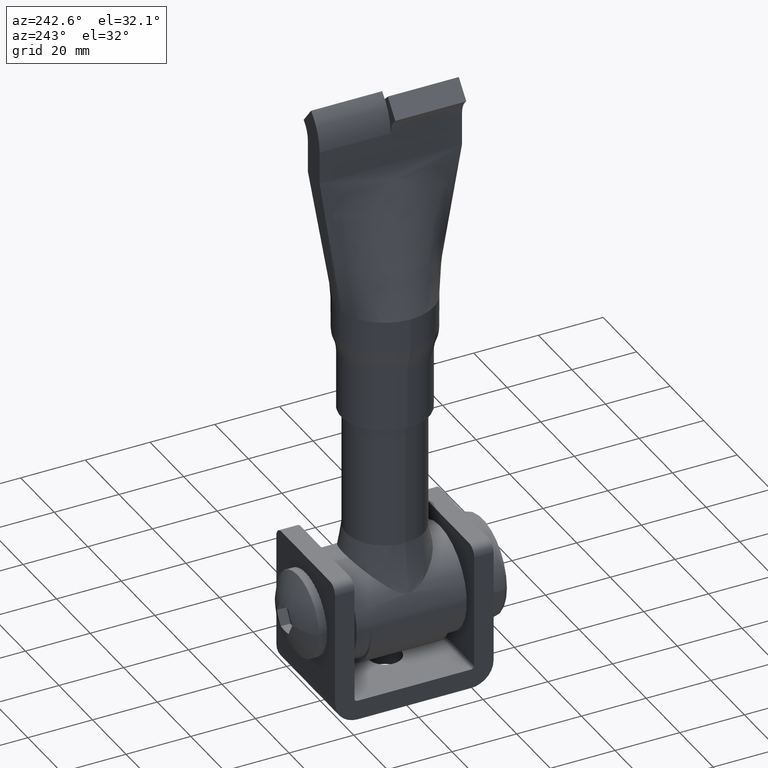
[diagram: clean part render]
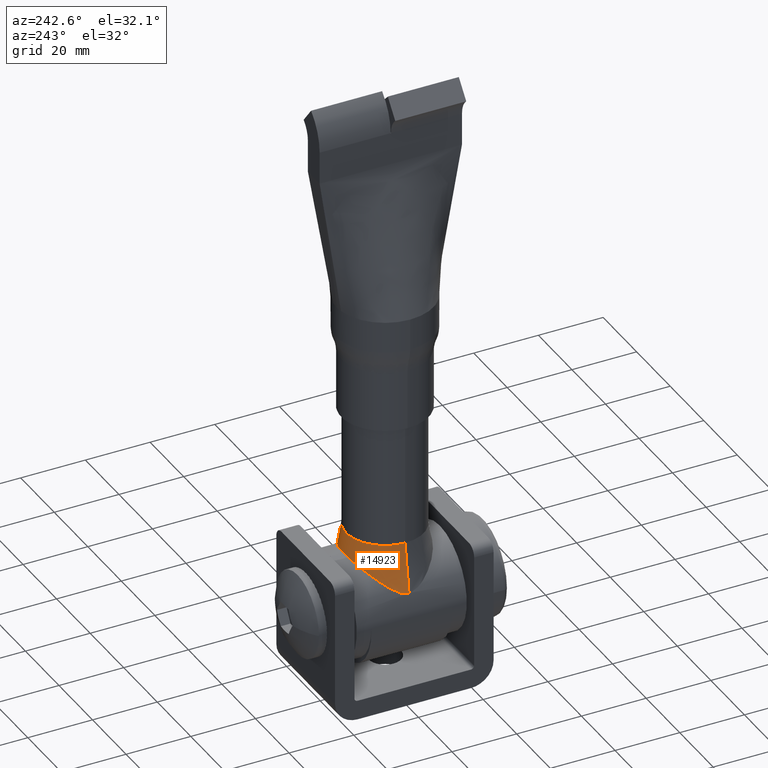
[diagram: same view with one face highlighted and labeled with its STEP entity id]
A machine part, auxiliary view. The second image highlights one B-rep face of the part: STEP entity #14923.
In plain terms, the highlighted conical surface has half-angle 9 deg.
Its self-contained STEP definition (entity closure, byte-faithful):
#38 = EDGE_CURVE ( 'NONE', #5625, #14264, #10500, .T. ) ;
#229 = EDGE_LOOP ( 'NONE', ( #8795, #6450, #8167, #14393, #17615 ) ) ;
#510 = CARTESIAN_POINT ( 'NONE',  ( 14.37013227026879000, 1.764413466471998600E-015, 7.035573788610242300 ) ) ;
#590 = CARTESIAN_POINT ( 'NONE',  ( 14.09498544176997800, 2.361605191282933400, 7.575784167723939300 ) ) ;
#620 = VERTEX_POINT ( 'NONE', #5697 ) ;
#840 = CARTESIAN_POINT ( 'NONE',  ( 12.20325666394872700, 6.551193701392584500, 10.35387925735861500 ) ) ;
#914 = CARTESIAN_POINT ( 'NONE',  ( 0.4880119091916997300, 12.95030664194722200, 15.99999999999999300 ) ) ;
#1082 = CARTESIAN_POINT ( 'NONE',  ( 1.958725423739160700, 12.82881013286578100, 15.88725319908740700 ) ) ;
#1407 = EDGE_CURVE ( 'NONE', #620, #7100, #3542, .T. ) ;
#1739 = CARTESIAN_POINT ( 'NONE',  ( -13.22602177685226700, 4.780326386978693200, 9.009972746427871800 ) ) ;
#1871 = CARTESIAN_POINT ( 'NONE',  ( -12.00000000000000200, 0.0000000000000000000, 22.00000000000000700 ) ) ;
#1900 = CARTESIAN_POINT ( 'NONE',  ( -9.418818992003918900, 9.589836602010988600, 12.94047858997327100 ) ) ;
#1981 = CARTESIAN_POINT ( 'NONE',  ( -1.700153802505209200, 12.85469765239082900, 15.91127140985864800 ) ) ;
#2490 = VERTEX_POINT ( 'NONE', #1871 ) ;
#2556 = DIRECTION ( 'NONE',  ( 0.1564344650402308700, 1.915769668878472600E-017, -0.9876883405951376600 ) ) ;
#2743 = AXIS2_PLACEMENT_3D ( 'NONE', #17971, #21874, #8341 ) ;
#2749 = CARTESIAN_POINT ( 'NONE',  ( 10.67296966742614500, 8.457719995989720000, 11.94621551893342100 ) ) ;
#2830 = CARTESIAN_POINT ( 'NONE',  ( 8.746950036081552000, 10.10963895884449600, 13.40381047997030000 ) ) ;
#2910 = CARTESIAN_POINT ( 'NONE',  ( 13.40088250116053500, 4.401890665174437200, 8.746617336469954700 ) ) ;
#3294 = EDGE_CURVE ( 'NONE', #7100, #5625, #11752, .T. ) ;
#3542 = LINE ( 'NONE', #17965, #17624 ) ;
#3575 = CARTESIAN_POINT ( 'NONE',  ( -14.19357844377577200, 1.915413211018429200, 7.386845820059106900 ) ) ;
#3656 = CARTESIAN_POINT ( 'NONE',  ( -14.09530552269350100, 2.360044224998334400, 7.575158578740383700 ) ) ;
#3747 = CARTESIAN_POINT ( 'NONE',  ( -1.941727415638019800, 12.82487179064025400, 15.88360543845838500 ) ) ;
#3825 = CARTESIAN_POINT ( 'NONE',  ( -2.423908881441438900, 12.75324303551535200, 15.81720243329187000 ) ) ;
#3904 = CARTESIAN_POINT ( 'NONE',  ( -7.266010316211065000, 11.06001050577770800, 14.26186931138049600 ) ) ;
#5422 = VECTOR ( 'NONE', #9999, 1000.000000000000100 ) ;
#5568 = CARTESIAN_POINT ( 'NONE',  ( -14.29703347392302400, 1.216054682399883200, 7.183357425171027300 ) ) ;
#5625 = VERTEX_POINT ( 'NONE', #11178 ) ;
#5697 = CARTESIAN_POINT ( 'NONE',  ( 12.00000000000000200, 1.615822452473417000E-015, 22.00000000000000700 ) ) ;
#5729 = CARTESIAN_POINT ( 'NONE',  ( -6.466614099915449100, 11.47667494985324600, 14.64167764475632600 ) ) ;
#6450 = ORIENTED_EDGE ( 'NONE', *, *, #1407, .T. ) ;
#6578 = CARTESIAN_POINT ( 'NONE',  ( 13.22763326216959900, 4.776865624771819100, 9.007559916730540900 ) ) ;
#6661 = CARTESIAN_POINT ( 'NONE',  ( 11.96910282920522700, 6.884249314876413500, 10.62419212503502100 ) ) ;
#6750 = CARTESIAN_POINT ( 'NONE',  ( 0.9801894237729048600, 12.92608462295847700, 15.97750444190327100 ) ) ;
#6976 = EDGE_CURVE ( 'NONE', #2490, #14264, #13821, .T. ) ;
#7055 = AXIS2_PLACEMENT_3D ( 'NONE', #14899, #7248, #15472 ) ;
#7100 = VERTEX_POINT ( 'NONE', #20412 ) ;
#7248 = DIRECTION ( 'NONE',  ( 0.0000000000000000000, 0.0000000000000000000, 1.000000000000000000 ) ) ;
#7493 = CARTESIAN_POINT ( 'NONE',  ( -2.665261371808574700, 12.71126432944758200, 15.77830267117884900 ) ) ;
#7579 = CARTESIAN_POINT ( 'NONE',  ( -11.22998834525346900, 7.846343840998543800, 11.41998609552967800 ) ) ;
#7667 = CARTESIAN_POINT ( 'NONE',  ( -14.36087637835378100, 0.4887487161785048500, 7.054567833647918300 ) ) ;
#8167 = ORIENTED_EDGE ( 'NONE', *, *, #3294, .T. ) ;
#8191 = CARTESIAN_POINT ( 'NONE',  ( 14.29673676165774100, 1.218482294766852300, 7.183950165869326600 ) ) ;
#8341 = DIRECTION ( 'NONE',  ( -1.000000000000000000, 0.0000000000000000000, 0.0000000000000000000 ) ) ;
#8353 = CONICAL_SURFACE ( 'NONE', #2743, 12.00000000000000200, 0.1570796326794896800 ) ;
#8516 = CARTESIAN_POINT ( 'NONE',  ( 3.380071932611025800, 12.56862334688493600, 15.64622531409090900 ) ) ;
#8598 = CARTESIAN_POINT ( 'NONE',  ( 6.482808467654956900, 11.49333550210684900, 14.65649642671328600 ) ) ;
#8678 = CARTESIAN_POINT ( 'NONE',  ( 7.277046785261602800, 11.07591239749469400, 14.27506694259597200 ) ) ;
#8795 = ORIENTED_EDGE ( 'NONE', *, *, #14463, .F. ) ;
#8853 = CARTESIAN_POINT ( 'NONE',  ( -14.37013227026879000, 2.180969929334028300E-018, 7.035573788610246700 ) ) ;
#9421 = CARTESIAN_POINT ( 'NONE',  ( -14.32435262376442100, 0.9749460764327704300, 7.128437387250663400 ) ) ;
#9586 = CARTESIAN_POINT ( 'NONE',  ( -14.37013227026878300, 0.2448142245451556400, 7.035573788610249400 ) ) ;
#9999 = DIRECTION ( 'NONE',  ( -0.1564344650402308700, 0.0000000000000000000, -0.9876883405951376600 ) ) ;
#10188 = CARTESIAN_POINT ( 'NONE',  ( 13.85419682557642500, 3.218319433909132300, 8.007643266144706100 ) ) ;
#10500 = B_SPLINE_CURVE_WITH_KNOTS ( 'NONE', 3,
 ( #11268, #13369, #24703, #1981, #3747, #3825, #7493, #15380, #20790, #17213, #5729, #3904, #17298, #17052, #24790, #1900, #13189, #17129, #7579, #24623, #20947, #1739, #15049, #15136, #22976, #3656, #3575, #5568, #9421, #7667, #9586, #16966 ),
 .UNSPECIFIED., .F., .F.,
 ( 4, 2, 2, 2, 2, 2, 2, 2, 2, 2, 2, 2, 2, 2, 2, 4 ),
 ( 0.05908301512928978300, 0.06052527536577973600, 0.06124640548402470600, 0.06196753560226968300, 0.06485205607524958900, 0.06629431631173954300, 0.06773657654822949600, 0.06917883678471945000, 0.07062109702120941700, 0.07350561749418932400, 0.07639013796716923000, 0.07783239820365918400, 0.07927465844014913700, 0.08071691867663910400, 0.08143804879488407400, 0.08215917891312905800 ),
 .UNSPECIFIED. ) ;
#11178 = CARTESIAN_POINT ( 'NONE',  ( 1.959434462373779800E-015, 12.95030664194722200, 16.00000000000000000 ) ) ;
#11268 = CARTESIAN_POINT ( 'NONE',  ( 1.959434462373779800E-015, 12.95030664194722200, 16.00000000000000000 ) ) ;
#11752 = B_SPLINE_CURVE_WITH_KNOTS ( 'NONE', 3,
 ( #510, #14157, #19862, #21726, #8191, #12029, #590, #10188, #23658, #2910, #6578, #18162, #23901, #840, #6661, #20112, #2749, #24063, #23987, #2830, #14390, #8678, #8598, #12451, #20028, #16295, #8516, #12535, #1082, #6750, #914, #16141 ),
 .UNSPECIFIED., .F., .F.,
 ( 4, 2, 2, 2, 2, 2, 2, 2, 2, 2, 2, 2, 2, 2, 2, 4 ),
 ( 0.03600463071150384500, 0.03672583022455965700, 0.03744702973761546800, 0.03888942876372708500, 0.04033182778983870900, 0.04177422681595033300, 0.04321662584206195600, 0.04465902486817357300, 0.04754382292039681400, 0.04898622194650843800, 0.05042862097262005400, 0.05331341902484329500, 0.05475581805095491900, 0.05619821707706654200, 0.05764061610317816600, 0.05908301512928978300 ),
 .UNSPECIFIED. ) ;
#12029 = CARTESIAN_POINT ( 'NONE',  ( 14.19298542025335200, 1.918571119986525000, 7.387993836745867100 ) ) ;
#12451 = CARTESIAN_POINT ( 'NONE',  ( 5.196028847184980900, 12.01971214872642900, 15.13972283441348800 ) ) ;
#12535 = CARTESIAN_POINT ( 'NONE',  ( 2.438427808561018900, 12.75667021129161700, 15.82034521340669500 ) ) ;
#13189 = CARTESIAN_POINT ( 'NONE',  ( -9.745874435656558500, 9.313149096503321900, 12.69555969767857200 ) ) ;
#13369 = CARTESIAN_POINT ( 'NONE',  ( -0.4879649520133941800, 12.95030664194722500, 16.00000000000001400 ) ) ;
#13760 = CIRCLE ( 'NONE', #7055, 12.00000000000000200 ) ;
#13774 = CARTESIAN_POINT ( 'NONE',  ( -12.00000000000000200, 0.0000000000000000000, 22.00000000000000700 ) ) ;
#13821 = LINE ( 'NONE', #13774, #5422 ) ;
#14157 = CARTESIAN_POINT ( 'NONE',  ( 14.37013227026878900, 0.2452140057000718200, 7.035573788610251200 ) ) ;
#14264 = VERTEX_POINT ( 'NONE', #8853 ) ;
#14390 = CARTESIAN_POINT ( 'NONE',  ( 8.388351362536500500, 10.36316912867927600, 13.63153688881971700 ) ) ;
#14393 = ORIENTED_EDGE ( 'NONE', *, *, #38, .T. ) ;
#14463 = EDGE_CURVE ( 'NONE', #620, #2490, #13760, .T. ) ;
#14899 = CARTESIAN_POINT ( 'NONE',  ( 0.0000000000000000000, 0.0000000000000000000, 22.00000000000000700 ) ) ;
#14923 = ADVANCED_FACE ( 'NONE', ( #23692 ), #8353, .T. ) ;
#15049 = CARTESIAN_POINT ( 'NONE',  ( -13.40107670495349400, 4.401589247806455800, 8.746356600610994300 ) ) ;
#15136 = CARTESIAN_POINT ( 'NONE',  ( -13.71540194815771400, 3.619021740903879200, 8.244717098698430400 ) ) ;
#15380 = CARTESIAN_POINT ( 'NONE',  ( -3.854053592266005500, 12.47439037997783600, 15.55896926927018600 ) ) ;
#15472 = DIRECTION ( 'NONE',  ( 1.000000000000000000, 0.0000000000000000000, 0.0000000000000000000 ) ) ;
#16141 = CARTESIAN_POINT ( 'NONE',  ( 1.959434462373779800E-015, 12.95030664194722200, 16.00000000000000000 ) ) ;
#16295 = CARTESIAN_POINT ( 'NONE',  ( 3.842008538601027200, 12.45270440431964700, 15.53900104850296400 ) ) ;
#16966 = CARTESIAN_POINT ( 'NONE',  ( -14.37013227026879000, 2.180969929334028300E-018, 7.035573788610246700 ) ) ;
#17052 = CARTESIAN_POINT ( 'NONE',  ( -8.386046174762936900, 10.36465827937866800, 13.63288088646344900 ) ) ;
#17129 = CARTESIAN_POINT ( 'NONE',  ( -10.67719620747689600, 8.454049897100237100, 11.94297698895290700 ) ) ;
#17213 = CARTESIAN_POINT ( 'NONE',  ( -6.047908045710875600, 11.67150644914960400, 14.82005607049950600 ) ) ;
#17298 = CARTESIAN_POINT ( 'NONE',  ( -7.649273341732145700, 10.83717148052618700, 14.05951027074636000 ) ) ;
#17615 = ORIENTED_EDGE ( 'NONE', *, *, #6976, .F. ) ;
#17624 = VECTOR ( 'NONE', #2556, 1000.000000000000100 ) ;
#17965 = CARTESIAN_POINT ( 'NONE',  ( 12.00000000000000200, 1.469576158976824100E-015, 22.00000000000000700 ) ) ;
#17971 = CARTESIAN_POINT ( 'NONE',  ( 0.0000000000000000000, 0.0000000000000000000, 22.00000000000000700 ) ) ;
#18162 = CARTESIAN_POINT ( 'NONE',  ( 12.84949106577198700, 5.506251982014998900, 9.539234598362284600 ) ) ;
#19862 = CARTESIAN_POINT ( 'NONE',  ( 14.36084594536075600, 0.4896138956358820300, 7.054630758041509100 ) ) ;
#20028 = CARTESIAN_POINT ( 'NONE',  ( 4.748899546076796900, 12.17879772261586700, 15.28625318046678800 ) ) ;
#20112 = CARTESIAN_POINT ( 'NONE',  ( 11.22469756111910200, 7.852646972352626900, 11.42530910060578400 ) ) ;
#20412 = CARTESIAN_POINT ( 'NONE',  ( 14.37013227026879000, 1.764413466471998600E-015, 7.035573788610242300 ) ) ;
#20790 = CARTESIAN_POINT ( 'NONE',  ( -4.756817758592143600, 12.19883437182242000, 15.30417261599058600 ) ) ;
#20947 = CARTESIAN_POINT ( 'NONE',  ( -12.65635510877974000, 5.878074087473883000, 9.810490257527300500 ) ) ;
#21726 = CARTESIAN_POINT ( 'NONE',  ( 14.32417375592177900, 0.9768644346330114200, 7.128797767425551200 ) ) ;
#21874 = DIRECTION ( 'NONE',  ( 0.0000000000000000000, 0.0000000000000000000, -1.000000000000000000 ) ) ;
#22976 = CARTESIAN_POINT ( 'NONE',  ( -13.85545869220217300, 3.214249133648106900, 8.005431262575253700 ) ) ;
#23658 = CARTESIAN_POINT ( 'NONE',  ( 13.71409452947266100, 3.622458003479176500, 8.246852604311254000 ) ) ;
#23692 = FACE_OUTER_BOUND ( 'NONE', #229, .T. ) ;
#23901 = CARTESIAN_POINT ( 'NONE',  ( 12.64397907635367000, 5.861435704362066600, 9.810814543089710700 ) ) ;
#23987 = CARTESIAN_POINT ( 'NONE',  ( 9.428183246151538900, 9.582201218054626300, 12.93370136479330100 ) ) ;
#24063 = CARTESIAN_POINT ( 'NONE',  ( 9.751231451021391500, 9.308321246733955300, 12.69131876028895100 ) ) ;
#24623 = CARTESIAN_POINT ( 'NONE',  ( -12.21953706986148600, 6.557875009685329100, 10.35430511695019000 ) ) ;
#24703 = CARTESIAN_POINT ( 'NONE',  ( -0.9739916107054201700, 12.92632075194840100, 15.97772398258610900 ) ) ;
#24790 = CARTESIAN_POINT ( 'NONE',  ( -8.739544608729012500, 10.11497769520662600, 13.40859788992593200 ) ) ;